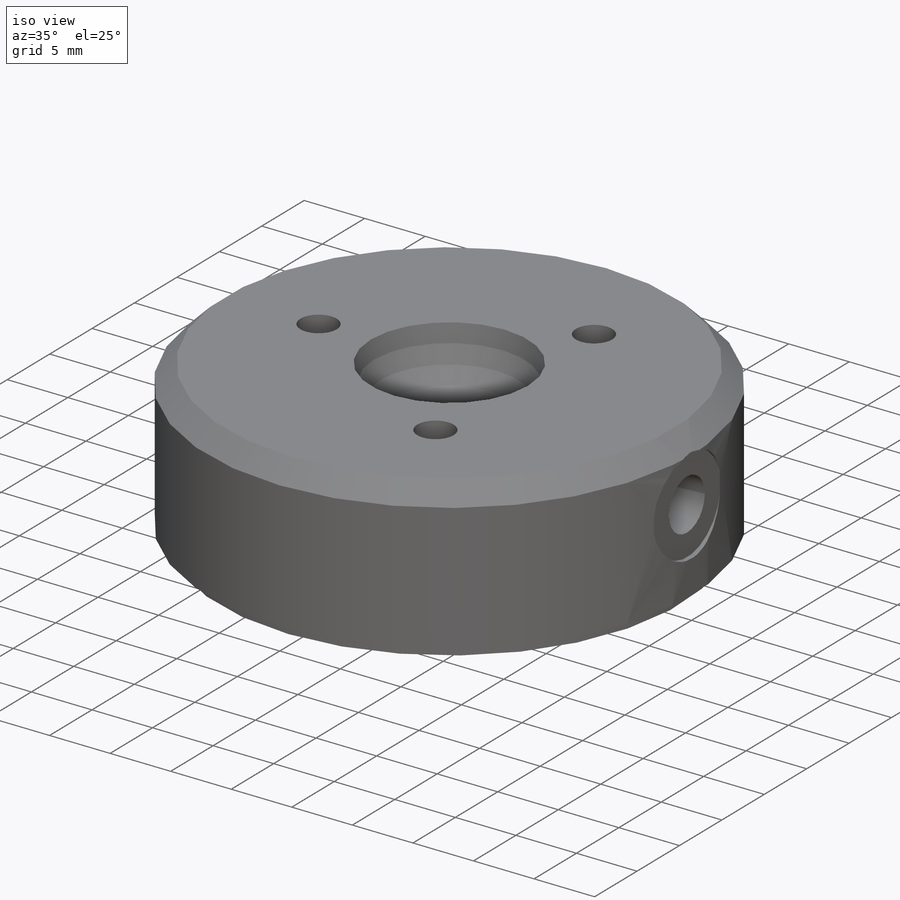
[diagram: iso view]
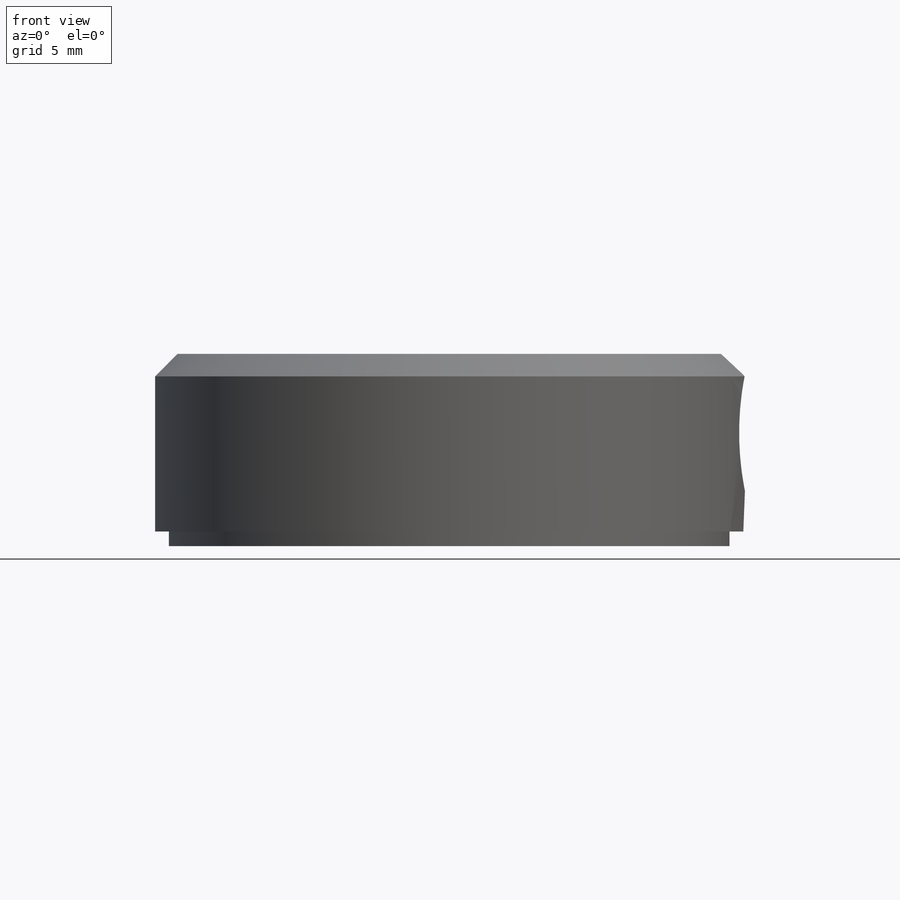
[diagram: front view]
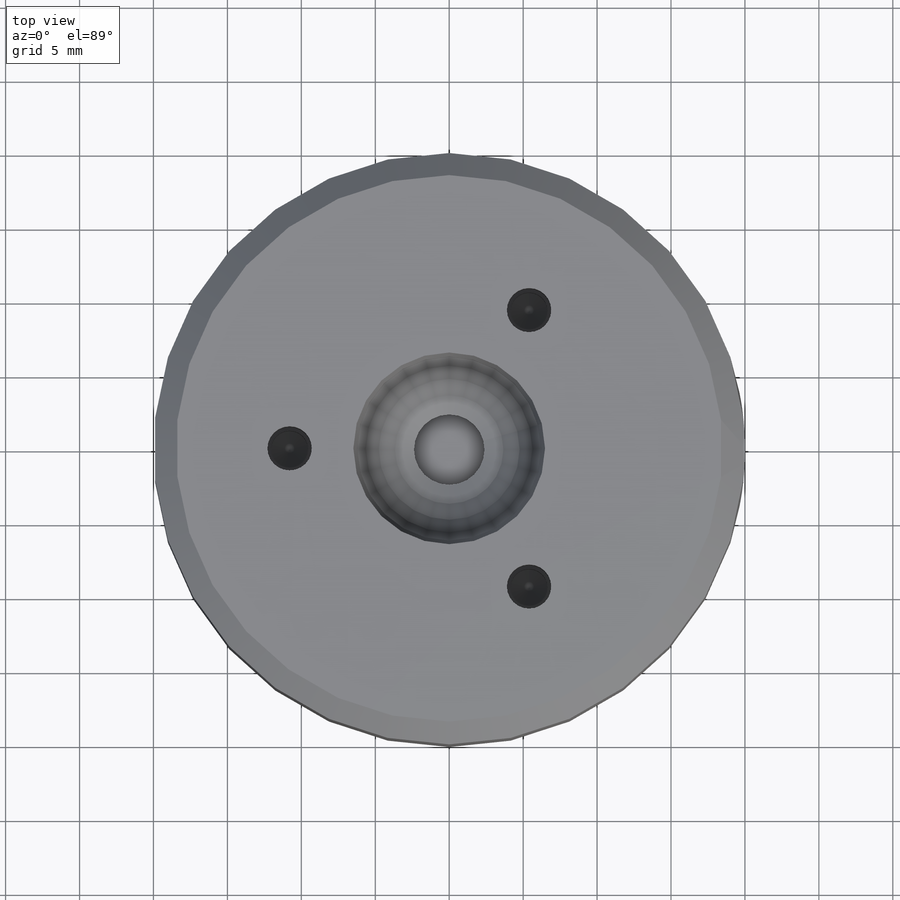
[diagram: top view]
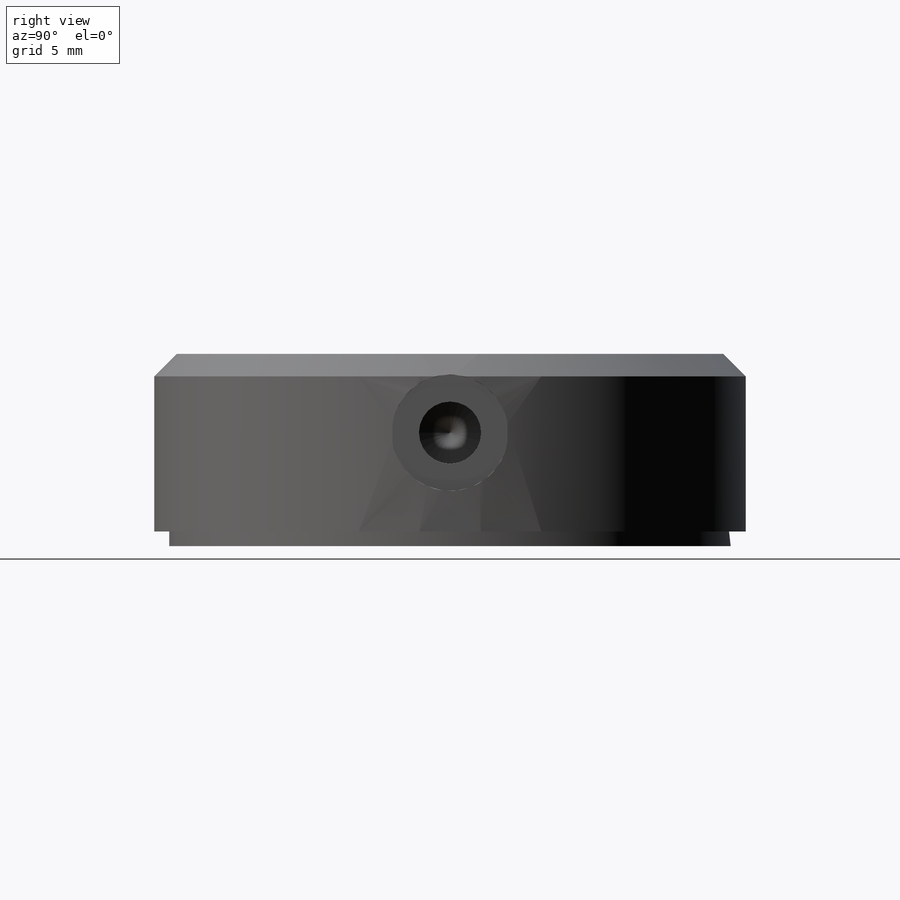
[diagram: right view]
SOLIDWORKS PART (.sldprt)
format: sldprt  version: not decoded by parser v0  size: 278,016 bytes
history: native  units: mm
features: sketch x10, hole x3, extrude x2, material x1, chamfer x1, cut_revolve x1, thread x1, pattern_circular x1, plane x1, cut_extrude x1 (+15 scaffold rows collapsed)
feature tree (37):
  scaffold x15  (default folders/planes/origin — collapsed)
  material  "6061 Alloy"
  sketch  "Sketch1"  dims[D1=40.0mm]
  extrude  "Extrude1"  Depth=12.0142mm
  chamfer  "Chamfer1"  Distance=1.52mm Angle=45deg
  sketch  "Sketch2"  dims[c1.D1=13.0048mm c2.D1=~0.867719mm c2.D2=7.0104mm c2.D3=~1.989245mm]
  cut_revolve  "Cut-Revolve1"  Angle=360deg
  hole  "3/16 (0.1875) Diameter Hole1"  Diameter=4.7625mm Depth=6.2484mm
  sketch  "Sketch4"
  sketch  "Sketch3"  dims[hole-wizard template sketch: 47 standard entries collapsed; hole parameters kept: c15.Hole Depth=6.2484mm c15.D3=~14.816244mm c15.Drill Angle=180.0deg]
  sketch  "Sketch5"  dims[D1=1.016mm]
  extrude  "Extrude2"  Depth=0.98552mm
  hole  "M5x0.8 Tapped Hole1"  Diameter=4.2mm Depth=12.7mm
  sketch  "3DSketch1"  dims[D1=5.334mm]
  sketch  "Sketch7"  dims[hole-wizard template sketch: 47 standard entries collapsed; hole parameters kept: c15.Tap Drill Depth=12.7mm c15.D3=~14.816244mm c15.Drill Angle=118.0deg]
  thread  "Hole Thread1"  Diameter=10.0076mm  [1 undecoded]
  hole  "M3x0.5 Tapped Hole1"  Diameter=2.5mm Depth=4.801997mm
  sketch  "Sketch9"  dims[D1=21.59mm]
  sketch  "Sketch8"  dims[hole-wizard template sketch: 29 standard entries collapsed; hole parameters kept: c8.Tap Drill Depth=~4.801997mm c8.Thread Major Dia.=3.0mm c8.Thread Depth=3.302mm c8.D5=~14.816244mm c8.Drill Angle=118.0deg]
  pattern_circular  "CirPattern1"  Count=3 Angle=360deg
  plane  "Plane1"
  sketch  "Sketch10"  dims[D1=5.334mm D2=5.334mm]
  cut_extrude  "Cut-Extrude3"  Depth=0.381mm
decode coverage: 19 of 20 modeling features carry decoded parameters
note: ~ marks probable driven/reference dimensions
note: 1 parameter value undecoded
note: suppression state not decoded; provenance and decode notes live in map.json
